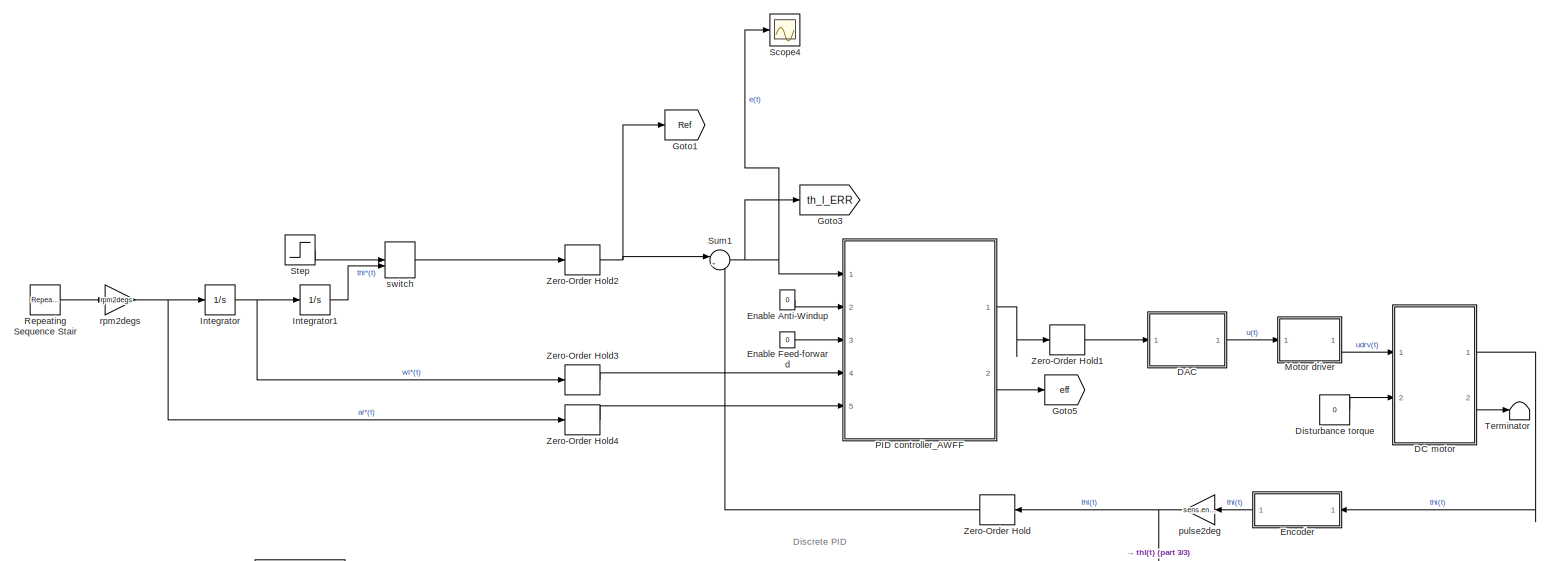
[diagram: root canvas - part 1/3, top center region]
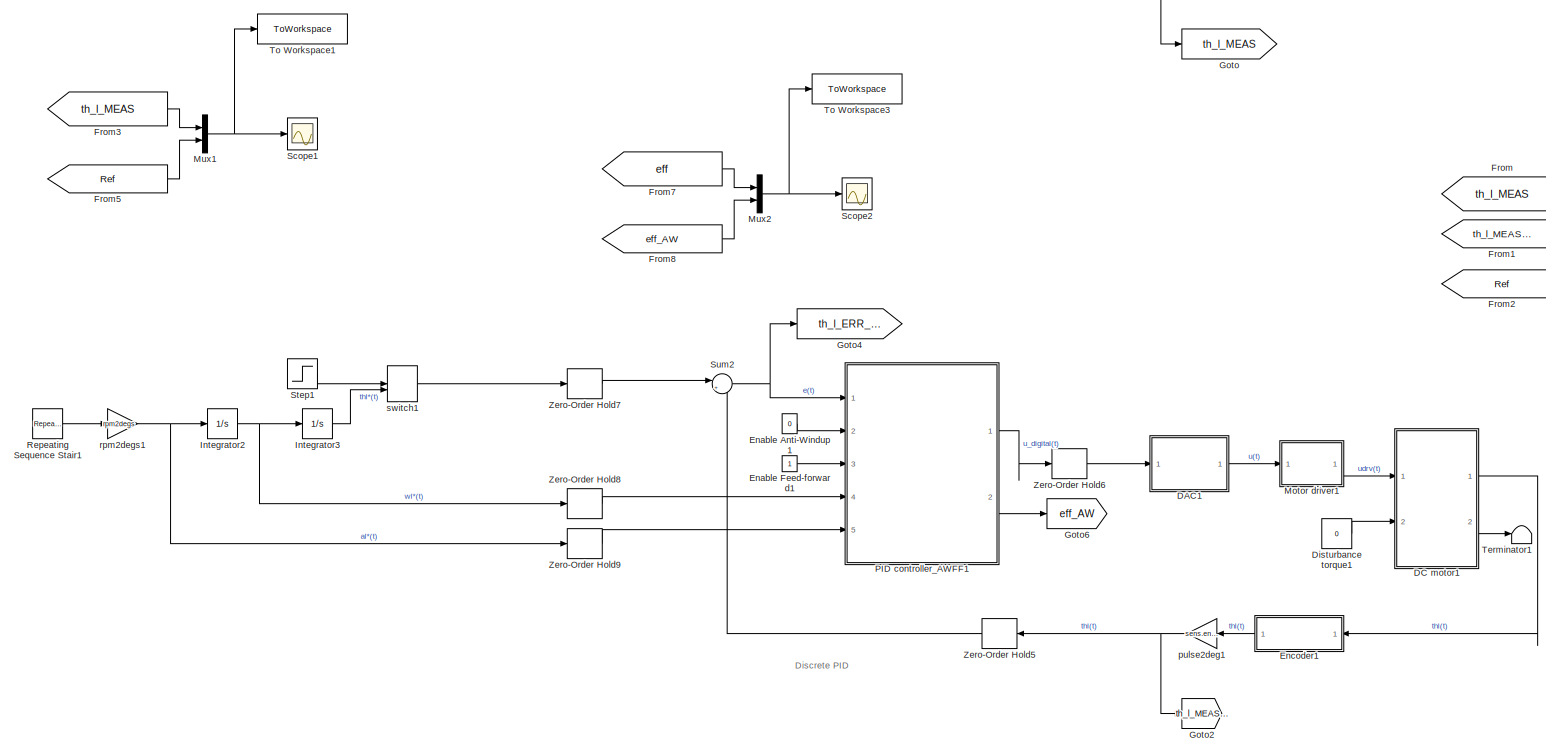
[diagram: root canvas - part 2/3, bottom center region]
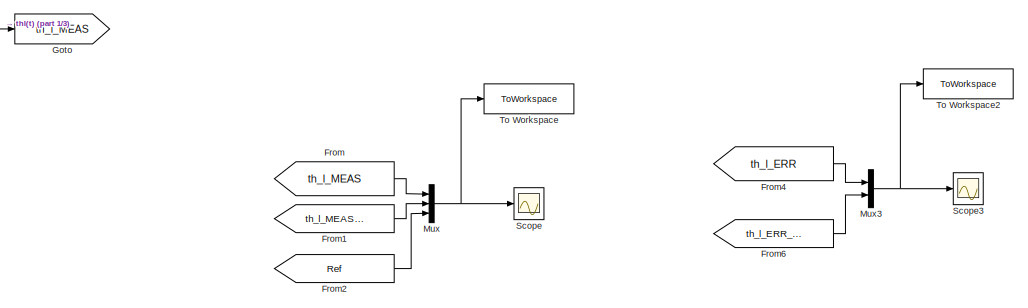
[diagram: root canvas - part 3/3, middle right region]
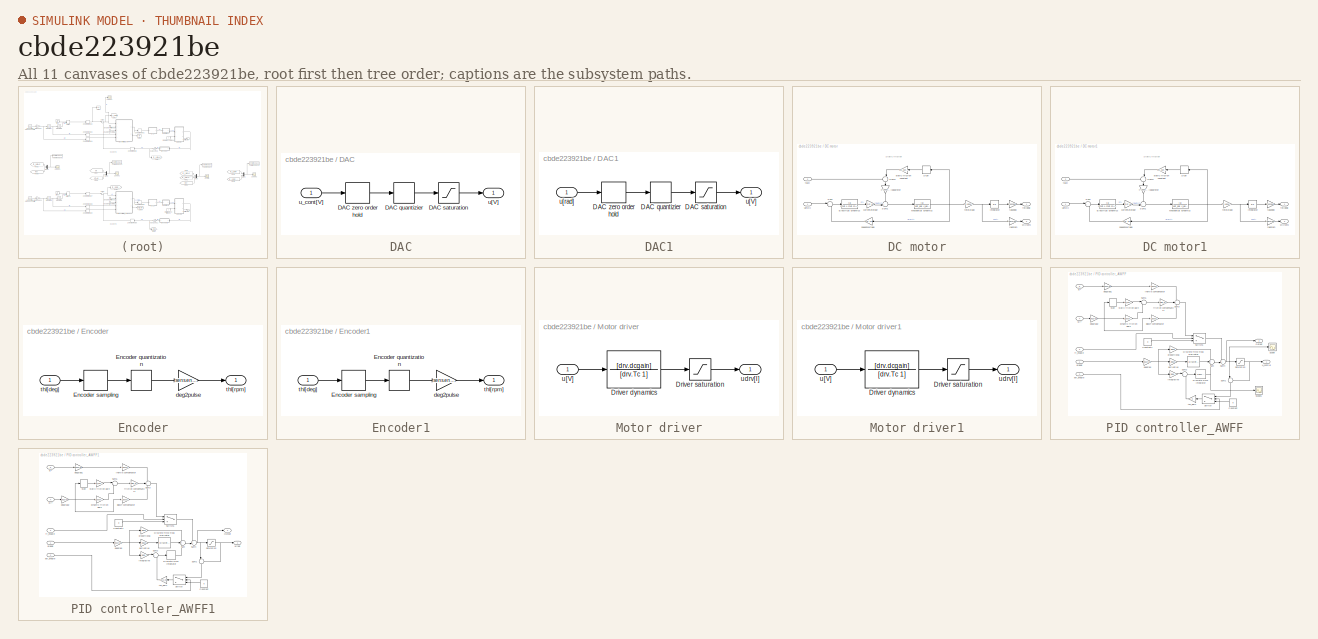
[diagram: thumbnail index - all 11 canvases of the model, root first then tree order]
MODEL slx_cbde223921be
KIND model
CONFIG AbsTol = auto
CONFIG EnableMultiTasking = off
CONFIG FixedStep = T_samp
CONFIG MaxStep = auto
CONFIG MinStep = auto
CONFIG RelTol = 1e-4
CONFIG SampleTimeConstraint = Unconstrained
CONFIG SolverName = ode45
CONFIG StartTime = 0.0
CONFIG StopTime = 1.5
BLOCK [SubSystem] DAC
  Ports = [1, 1]
  RequestExecContextInheritance = off
BLOCK [Quantizer] DAC/DAC quantizier
  QuantizationInterval = daq.dac.q
BLOCK [Saturate] DAC/DAC saturation
  LowerLimit = -10
  UpperLimit = 10
BLOCK [ZeroOrderHold] DAC/DAC zero order hold
  SampleTime = sens.enc.T_s
BLOCK [Outport] DAC/u[V]
BLOCK [Inport] DAC/u_cont[V]
BLOCK [SubSystem] DAC1
  Ports = [1, 1]
  RequestExecContextInheritance = off
BLOCK [Quantizer] DAC1/DAC quantizier
  QuantizationInterval = daq.dac.q
BLOCK [Saturate] DAC1/DAC saturation
  LowerLimit = -10
  UpperLimit = 10
BLOCK [ZeroOrderHold] DAC1/DAC zero order hold
  SampleTime = sens.enc.T_s
BLOCK [Outport] DAC1/u[V]
BLOCK [Inport] DAC1/u[rad]
BLOCK [SubSystem] DC motor
  Ports = [2, 2]
  RequestExecContextInheritance = off
BLOCK [TransferFcn] DC motor/Electrical dynamics
  Denominator = [mot.L mot.R+sens.curr.Rs]
BLOCK [Integrator] DC motor/Integrator
  Ports = [1, 1]
BLOCK [TransferFcn] DC motor/Mechanical dynamics
  Denominator = [est_par.J_eq est_par.B_eq]
BLOCK [Signum] DC motor/Sign
  ZeroCross = off
BLOCK [Sum] DC motor/Sum
  Inputs = |+-
  Ports = [2, 1]
BLOCK [Sum] DC motor/Sum1
  Inputs = -+|
  Ports = [2, 1]
BLOCK [Sum] DC motor/Sum2
  Inputs = ++|
  NameLocation = left
  Ports = [2, 1]
BLOCK [Gain] DC motor/current2torque
  Gain = mot.Kt
BLOCK [Gain] DC motor/load2rotor
  Gain = 1/(gbox.N)
  NameLocation = left
BLOCK [Gain] DC motor/rad2deg
  Gain = rad2deg
BLOCK [Gain] DC motor/rad2rpm
  Gain = rads2rpm
BLOCK [Gain] DC motor/rotor2load
  Gain = 1/(gbox.N)
BLOCK [Gain] DC motor/speed2voltage
  Gain = mot.Ke
BLOCK [Gain] DC motor/static friction constant
  Gain = est_par.tau_sf
BLOCK [Inport] DC motor/tau[]
  Port = 2
  Unit = V
BLOCK [Outport] DC motor/thl[deg]
  Unit = deg
BLOCK [Inport] DC motor/udrv[I]
  Unit = V
BLOCK [Outport] DC motor/wl[rpm]
  Port = 2
  Unit = rpm
BLOCK [SubSystem] DC motor1
  Ports = [2, 2]
  RequestExecContextInheritance = off
BLOCK [TransferFcn] DC motor1/Electrical dynamics
  Denominator = [mot.L mot.R+sens.curr.Rs]
BLOCK [Integrator] DC motor1/Integrator
  Ports = [1, 1]
BLOCK [TransferFcn] DC motor1/Mechanical dynamics
  Denominator = [est_par.J_eq est_par.B_eq]
BLOCK [Signum] DC motor1/Sign
  ZeroCross = off
BLOCK [Sum] DC motor1/Sum
  Inputs = |+-
  Ports = [2, 1]
BLOCK [Sum] DC motor1/Sum1
  Inputs = -+|
  Ports = [2, 1]
BLOCK [Sum] DC motor1/Sum2
  Inputs = ++|
  NameLocation = left
  Ports = [2, 1]
BLOCK [Gain] DC motor1/current2torque
  Gain = mot.Kt
BLOCK [Gain] DC motor1/load2rotor
  Gain = 1/(gbox.N)
  NameLocation = left
BLOCK [Gain] DC motor1/rad2deg
  Gain = rad2deg
BLOCK [Gain] DC motor1/rad2rpm
  Gain = rads2rpm
BLOCK [Gain] DC motor1/rotor2load
  Gain = 1/(gbox.N)
BLOCK [Gain] DC motor1/speed2voltage
  Gain = mot.Ke
BLOCK [Gain] DC motor1/static friction constant
  Gain = est_par.tau_sf
BLOCK [Inport] DC motor1/tau[]
  Port = 2
  Unit = V
BLOCK [Outport] DC motor1/thl[deg]
  Unit = deg
BLOCK [Inport] DC motor1/udrv[I]
  Unit = V
BLOCK [Outport] DC motor1/wl[rpm]
  Port = 2
  Unit = rpm
BLOCK [Constant] Disturbance torque
  Value = 0
BLOCK [Constant] Disturbance torque1
  Value = 0
BLOCK [Constant] Enable Anti-Windup
  Value = 0
BLOCK [Constant] Enable Anti-Windup1
  Value = 0
BLOCK [Constant] Enable Feed-forward
  Value = 0
BLOCK [Constant] Enable Feed-forward1
BLOCK [SubSystem] Encoder
  Ports = [1, 1]
  RequestExecContextInheritance = off
BLOCK [Quantizer] Encoder/Encoder quantization
  QuantizationInterval = sens.enc.q
BLOCK [ZeroOrderHold] Encoder/Encoder sampling
  SampleTime = sens.enc.T_s
BLOCK [Gain] Encoder/deg2pulse
  Gain = sens.enc.deg2pulse
BLOCK [Inport] Encoder/thl[deg]
BLOCK [Outport] Encoder/thl[rpm]
BLOCK [SubSystem] Encoder1
  Ports = [1, 1]
  RequestExecContextInheritance = off
BLOCK [Quantizer] Encoder1/Encoder quantization
  QuantizationInterval = sens.enc.q
BLOCK [ZeroOrderHold] Encoder1/Encoder sampling
  SampleTime = sens.enc.T_s
BLOCK [Gain] Encoder1/deg2pulse
  Gain = sens.enc.deg2pulse
BLOCK [Inport] Encoder1/thl[deg]
BLOCK [Outport] Encoder1/thl[rpm]
BLOCK [From] From
  GotoTag = th_l_MEAS
BLOCK [From] From1
  GotoTag = th_l_MEAS_AWFF
BLOCK [From] From2
  GotoTag = Ref
BLOCK [From] From3
  GotoTag = th_l_MEAS
BLOCK [From] From4
  GotoTag = th_l_ERR
BLOCK [From] From5
  GotoTag = Ref
BLOCK [From] From6
  GotoTag = th_l_ERR_AWFF
BLOCK [From] From7
  GotoTag = eff
BLOCK [From] From8
  GotoTag = eff_AW
BLOCK [Goto] Goto
  GotoTag = th_l_MEAS
BLOCK [Goto] Goto1
  GotoTag = Ref
BLOCK [Goto] Goto2
  GotoTag = th_l_MEAS_AWFF
BLOCK [Goto] Goto3
  GotoTag = th_l_ERR
BLOCK [Goto] Goto4
  GotoTag = th_l_ERR_AWFF
BLOCK [Goto] Goto5
  GotoTag = eff
BLOCK [Goto] Goto6
  GotoTag = eff_AW
BLOCK [Integrator] Integrator
  Ports = [1, 1]
BLOCK [Integrator] Integrator1
  Ports = [1, 1]
BLOCK [Integrator] Integrator2
  Ports = [1, 1]
BLOCK [Integrator] Integrator3
  Ports = [1, 1]
BLOCK [SubSystem] Motor driver
  Ports = [1, 1]
  RequestExecContextInheritance = off
BLOCK [TransferFcn] Motor driver/Driver dynamics
  Denominator = [drv.Tc 1]
  Numerator = [drv.dcgain]
BLOCK [Saturate] Motor driver/Driver saturation
  LowerLimit = -12
  UpperLimit = 12
BLOCK [Inport] Motor driver/u[V]
BLOCK [Outport] Motor driver/udrv[I]
BLOCK [SubSystem] Motor driver1
  Ports = [1, 1]
  RequestExecContextInheritance = off
BLOCK [TransferFcn] Motor driver1/Driver dynamics
  Denominator = [drv.Tc 1]
  Numerator = [drv.dcgain]
BLOCK [Saturate] Motor driver1/Driver saturation
  LowerLimit = -12
  UpperLimit = 12
BLOCK [Inport] Motor driver1/u[V]
BLOCK [Outport] Motor driver1/udrv[I]
BLOCK [Mux] Mux
  DisplayOption = bar
  Inputs = 3
  Ports = [3, 1]
BLOCK [Mux] Mux1
  DisplayOption = bar
  Inputs = 2
  Ports = [2, 1]
BLOCK [Mux] Mux2
  DisplayOption = bar
  Inputs = 2
  Ports = [2, 1]
BLOCK [Mux] Mux3
  DisplayOption = bar
  Inputs = 2
  Ports = [2, 1]
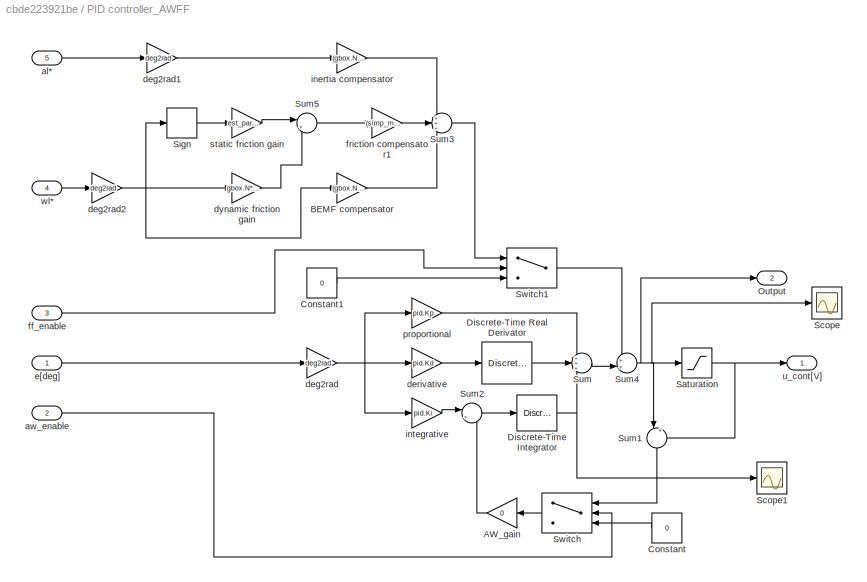
BLOCK [SubSystem] PID controller_AWFF
  Ports = [5, 2]
  RequestExecContextInheritance = off
BLOCK [Gain] PID controller_AWFF/AW_gain
  Gain = 0
  NameLocation = top
BLOCK [Gain] PID controller_AWFF/BEMF compensator
  Gain = (gbox.N*mot.Ke)/(drv.dcgain)
BLOCK [Constant] PID controller_AWFF/Constant
  NameLocation = top
  Value = 0
BLOCK [Constant] PID controller_AWFF/Constant1
  Value = 0
BLOCK [DiscreteIntegrator] PID controller_AWFF/Discrete-Time Integrator
  ICPrevOutput = DiscIntNeverNeededParam
  ICPrevScaledInput = DiscIntNeverNeededParam
  InitialConditionSetting = Auto
  IntegratorMethod = Integration: Trapezoidal
  Ports = [1, 1]
  SampleTime = T_samp
BLOCK [DiscreteTransferFcn] PID controller_AWFF/Discrete-Time Real Derivator
  Denominator = tust.der_den
  InputPortMap = u0
  Numerator = tust.der_num
  Ports = [1, 1]
  SampleTime = T_samp
BLOCK [Outport] PID controller_AWFF/Output
  Port = 2
BLOCK [Saturate] PID controller_AWFF/Saturation
  LowerLimit = daq.dac.vss
  UpperLimit = daq.dac.vdd
BLOCK [Scope] PID controller_AWFF/Scope
  Floating = off
  NumInputPorts = 1
  Ports = [1]
  ScopeSpecificationString = Simulink.scopes.TimeScopeBlockCfg('CurrentConfiguration', extmgr.ConfigurationSet(extmgr.Configuration('Core','General UI',true),extmgr.Configuration('Core','Source UI',true),extmgr.Configuration('Sources','WiredSimulink',true,'DataLoggingVariableName','ScopeData2'),extmgr.Configuration('Visuals','Time Domain',true,'SerializedDisplays',{struct('MinYLimReal','-113.24985','MaxYLimReal','118.13528','...<+1421ch>
BLOCK [Scope] PID controller_AWFF/Scope1
  Floating = off
  NumInputPorts = 1
  Ports = [1]
  ScopeSpecificationString = Simulink.scopes.TimeScopeBlockCfg('CurrentConfiguration', extmgr.ConfigurationSet(extmgr.Configuration('Core','General UI',true),extmgr.Configuration('Core','Source UI',true),extmgr.Configuration('Sources','WiredSimulink',true,'DataLoggingVariableName','ScopeData1'),extmgr.Configuration('Visuals','Time Domain',true,'SerializedDisplays',{struct('MinYLimReal','-2.17068','MaxYLimReal','4.995','YLabel...<+1400ch>
BLOCK [Signum] PID controller_AWFF/Sign
BLOCK [Sum] PID controller_AWFF/Sum
  Inputs = +++
  Ports = [3, 1]
BLOCK [Sum] PID controller_AWFF/Sum1
  Inputs = |+-
  NameLocation = left
  Ports = [2, 1]
BLOCK [Sum] PID controller_AWFF/Sum2
  Inputs = |+-
  Ports = [2, 1]
BLOCK [Sum] PID controller_AWFF/Sum3
  Inputs = +++
  Ports = [3, 1]
BLOCK [Sum] PID controller_AWFF/Sum4
  Inputs = ++|
  Ports = [2, 1]
BLOCK [Sum] PID controller_AWFF/Sum5
  Inputs = |++
  Ports = [2, 1]
BLOCK [Switch] PID controller_AWFF/Switch
  Criteria = u2 > Threshold
  InputSameDT = off
  NameLocation = top
  SaturateOnIntegerOverflow = off
BLOCK [Switch] PID controller_AWFF/Switch1
  Criteria = u2 > Threshold
  InputSameDT = off
  SaturateOnIntegerOverflow = off
BLOCK [Inport] PID controller_AWFF/al*
  Port = 5
  Unit = deg
BLOCK [Inport] PID controller_AWFF/aw_enable
  Port = 2
  Unit = deg
BLOCK [Gain] PID controller_AWFF/deg2rad
  Gain = deg2rad
BLOCK [Gain] PID controller_AWFF/deg2rad1
  Gain = deg2rad
BLOCK [Gain] PID controller_AWFF/deg2rad2
  Gain = deg2rad
BLOCK [Gain] PID controller_AWFF/derivative
  Gain = pid.Kd
BLOCK [Gain] PID controller_AWFF/dynamic friction gain
  Gain = gbox.N*gbox.N*est_par.B_eq
BLOCK [Inport] PID controller_AWFF/e[deg]
  Unit = deg
BLOCK [Inport] PID controller_AWFF/ff_enable
  Port = 3
  Unit = deg
BLOCK [Gain] PID controller_AWFF/friction compensator1
  Gain = (simp_model.Req)/(drv.dcgain*mot.Kt*gbox.N)
BLOCK [Gain] PID controller_AWFF/inertia compensator
  Gain = (gbox.N*simp_model.Req*est_par.J_eq)/(drv.dcgain*mot.Kt)
BLOCK [Gain] PID controller_AWFF/integrative
  Gain = pid.Ki
BLOCK [Gain] PID controller_AWFF/proportional
  Gain = pid.Kp
BLOCK [Gain] PID controller_AWFF/static friction gain
  Gain = est_par.tau_sf
BLOCK [Outport] PID controller_AWFF/u_cont[V]
BLOCK [Inport] PID controller_AWFF/wl*
  Port = 4
  Unit = deg
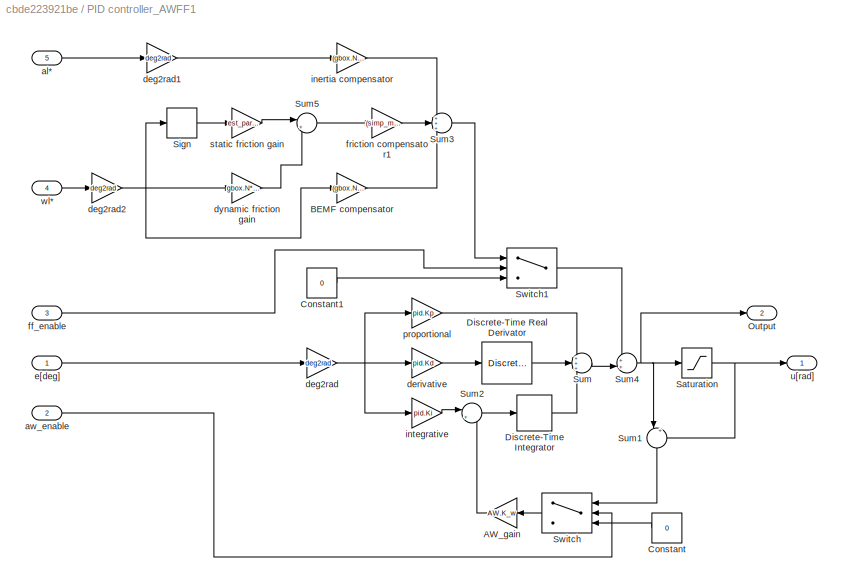
BLOCK [SubSystem] PID controller_AWFF1
  Ports = [5, 2]
  RequestExecContextInheritance = off
BLOCK [Gain] PID controller_AWFF1/AW_gain
  Gain = AW.K_w
  NameLocation = top
BLOCK [Gain] PID controller_AWFF1/BEMF compensator
  Gain = (gbox.N*mot.Ke)/(drv.dcgain)
BLOCK [Constant] PID controller_AWFF1/Constant
  NameLocation = top
  Value = 0
BLOCK [Constant] PID controller_AWFF1/Constant1
  Value = 0
BLOCK [DiscreteIntegrator] PID controller_AWFF1/Discrete-Time Integrator
  ICPrevOutput = DiscIntNeverNeededParam
  ICPrevScaledInput = DiscIntNeverNeededParam
  InitialConditionSetting = Auto
  IntegratorMethod = Integration: Backward Euler
  Ports = [1, 1]
  SampleTime = T_samp
BLOCK [DiscreteTransferFcn] PID controller_AWFF1/Discrete-Time Real Derivator
  Denominator = back.der_den
  InputPortMap = u0
  Numerator = back.der_num
  Ports = [1, 1]
  SampleTime = T_samp
BLOCK [Outport] PID controller_AWFF1/Output
  Port = 2
BLOCK [Saturate] PID controller_AWFF1/Saturation
  LowerLimit = daq.dac.vss
  UpperLimit = daq.dac.vdd
BLOCK [Signum] PID controller_AWFF1/Sign
BLOCK [Sum] PID controller_AWFF1/Sum
  Inputs = +++
  Ports = [3, 1]
BLOCK [Sum] PID controller_AWFF1/Sum1
  Inputs = |+-
  NameLocation = left
  Ports = [2, 1]
BLOCK [Sum] PID controller_AWFF1/Sum2
  Inputs = |+-
  Ports = [2, 1]
BLOCK [Sum] PID controller_AWFF1/Sum3
  Inputs = +++
  Ports = [3, 1]
BLOCK [Sum] PID controller_AWFF1/Sum4
  Inputs = ++|
  Ports = [2, 1]
BLOCK [Sum] PID controller_AWFF1/Sum5
  Inputs = |++
  Ports = [2, 1]
BLOCK [Switch] PID controller_AWFF1/Switch
  Criteria = u2 > Threshold
  InputSameDT = off
  NameLocation = top
  SaturateOnIntegerOverflow = off
BLOCK [Switch] PID controller_AWFF1/Switch1
  Criteria = u2 > Threshold
  InputSameDT = off
  SaturateOnIntegerOverflow = off
BLOCK [Inport] PID controller_AWFF1/al*
  Port = 5
  Unit = deg
BLOCK [Inport] PID controller_AWFF1/aw_enable
  Port = 2
  Unit = deg
BLOCK [Gain] PID controller_AWFF1/deg2rad
  Gain = deg2rad
BLOCK [Gain] PID controller_AWFF1/deg2rad1
  Gain = deg2rad
BLOCK [Gain] PID controller_AWFF1/deg2rad2
  Gain = deg2rad
BLOCK [Gain] PID controller_AWFF1/derivative
  Gain = pid.Kd
BLOCK [Gain] PID controller_AWFF1/dynamic friction gain
  Gain = gbox.N*gbox.N*est_par.B_eq
BLOCK [Inport] PID controller_AWFF1/e[deg]
  Unit = deg
BLOCK [Inport] PID controller_AWFF1/ff_enable
  Port = 3
  Unit = deg
BLOCK [Gain] PID controller_AWFF1/friction compensator1
  Gain = (simp_model.Req)/(drv.dcgain*mot.Kt*gbox.N)
BLOCK [Gain] PID controller_AWFF1/inertia compensator
  Gain = (gbox.N*simp_model.Req*est_par.J_eq)/(drv.dcgain*mot.Kt)
BLOCK [Gain] PID controller_AWFF1/integrative
  Gain = pid.Ki
BLOCK [Gain] PID controller_AWFF1/proportional
  Gain = pid.Kp
BLOCK [Gain] PID controller_AWFF1/static friction gain
  Gain = est_par.tau_sf
BLOCK [Outport] PID controller_AWFF1/u[rad]
BLOCK [Inport] PID controller_AWFF1/wl*
  Port = 4
  Unit = deg
BLOCK [Reference] Repeating Sequence Stair  REF=simulink/Sources/Repeating
Sequence
Stair
  Ports = [0, 1]
  SourceBlock = simulink/Sources/Repeating\nSequence\nStair
  SourceProductBaseCode = SL
  SourceType = Repeating Sequence Stair
BLOCK [Reference] Repeating Sequence Stair1  REF=simulink/Sources/Repeating
Sequence
Stair
  Ports = [0, 1]
  SourceBlock = simulink/Sources/Repeating\nSequence\nStair
  SourceProductBaseCode = SL
  SourceType = Repeating Sequence Stair
BLOCK [Scope] Scope
  Floating = off
  NumInputPorts = 1
  Ports = [1]
  ScopeSpecificationString = Simulink.scopes.TimeScopeBlockCfg('CurrentConfiguration', extmgr.ConfigurationSet(extmgr.Configuration('Core','General UI',true),extmgr.Configuration('Core','Source UI',true),extmgr.Configuration('Sources','WiredSimulink',true),extmgr.Configuration('Visuals','Time Domain',true,'SerializedDisplays',{struct('MinYLimReal','-349.14551','MaxYLimReal','3049.14551','YLabelReal','','MinYLimMag',' 0.00000'...<+1487ch>
BLOCK [Scope] Scope1
  Floating = off
  NumInputPorts = 1
  Ports = [1]
  ScopeSpecificationString = Simulink.scopes.TimeScopeBlockCfg('CurrentConfiguration', extmgr.ConfigurationSet(extmgr.Configuration('Core','General UI',true),extmgr.Configuration('Core','Source UI',true),extmgr.Configuration('Sources','WiredSimulink',true,'DataLoggingVariableName','ScopeData1'),extmgr.Configuration('Visuals','Time Domain',true,'SerializedDisplays',{struct('MinYLimReal','-13.91968','MaxYLimReal','125.2771','YL...<+1796ch>
BLOCK [Scope] Scope2
  Floating = off
  NumInputPorts = 1
  Ports = [1]
  ScopeSpecificationString = Simulink.scopes.TimeScopeBlockCfg('CurrentConfiguration', extmgr.ConfigurationSet(extmgr.Configuration('Core','General UI',true),extmgr.Configuration('Core','Source UI',true),extmgr.Configuration('Sources','WiredSimulink',true,'DataLoggingVariableName','ScopeData1','DataLogging',true),extmgr.Configuration('Visuals','Time Domain',true,'SerializedDisplays',{struct('MinYLimReal','-73.40959','MaxYLimR...<+1604ch>
BLOCK [Scope] Scope3
  Floating = off
  NumInputPorts = 1
  Ports = [1]
  ScopeSpecificationString = Simulink.scopes.TimeScopeBlockCfg('CurrentConfiguration', extmgr.ConfigurationSet(extmgr.Configuration('Core','General UI',true),extmgr.Configuration('Core','Source UI',true),extmgr.Configuration('Sources','WiredSimulink',true,'DataLoggingVariableName','ScopeData2'),extmgr.Configuration('Visuals','Time Domain',true,'SerializedDisplays',{struct('MinYLimReal','-19.5126','MaxYLimReal','19.5126','YLab...<+1487ch>
BLOCK [Scope] Scope4
  Floating = off
  NumInputPorts = 1
  Ports = [1]
  ScopeSpecificationString = Simulink.scopes.TimeScopeBlockCfg('CurrentConfiguration', extmgr.ConfigurationSet(extmgr.Configuration('Core','General UI',true),extmgr.Configuration('Core','Source UI',true),extmgr.Configuration('Sources','WiredSimulink',true,'DataLoggingVariableName','ScopeData2'),extmgr.Configuration('Visuals','Time Domain',true,'SerializedDisplays',{struct('MinYLimReal','-64.40063','MaxYLimReal','62.71118','YL...<+1369ch>
BLOCK [Step] Step
  After = 50
  SampleTime = 0
  Time = 0
BLOCK [Step] Step1
  After = 360
  SampleTime = 0
  Time = 0
BLOCK [Sum] Sum1
  Inputs = |+-
  Ports = [2, 1]
BLOCK [Sum] Sum2
  Inputs = |+-
  Ports = [2, 1]
BLOCK [Terminator] Terminator
BLOCK [Terminator] Terminator1
BLOCK [ToWorkspace] To Workspace
  FixptAsFi = on
  MaxDataPoints = inf
  Ports = [1]
  SampleTime = -1
  SaveFormat = Structure With Time
  VariableName = simres
BLOCK [ToWorkspace] To Workspace1
  FixptAsFi = on
  MaxDataPoints = inf
  Ports = [1]
  SampleTime = -1
  SaveFormat = Structure With Time
  VariableName = simres1
BLOCK [ToWorkspace] To Workspace2
  FixptAsFi = on
  MaxDataPoints = inf
  Ports = [1]
  SampleTime = -1
  SaveFormat = Structure With Time
  VariableName = simerr
BLOCK [ToWorkspace] To Workspace3
  FixptAsFi = on
  MaxDataPoints = inf
  Ports = [1]
  SampleTime = -1
  SaveFormat = Structure With Time
  VariableName = simres2
BLOCK [ZeroOrderHold] Zero-Order Hold
  NameLocation = top
  SampleTime = T_samp
BLOCK [ZeroOrderHold] Zero-Order Hold1
  SampleTime = T_samp
BLOCK [ZeroOrderHold] Zero-Order Hold2
  SampleTime = T_samp
BLOCK [ZeroOrderHold] Zero-Order Hold3
  SampleTime = T_samp
BLOCK [ZeroOrderHold] Zero-Order Hold4
  SampleTime = T_samp
BLOCK [ZeroOrderHold] Zero-Order Hold5
  NameLocation = top
  SampleTime = T_samp
BLOCK [ZeroOrderHold] Zero-Order Hold6
  SampleTime = T_samp
BLOCK [ZeroOrderHold] Zero-Order Hold7
  SampleTime = T_samp
BLOCK [ZeroOrderHold] Zero-Order Hold8
  SampleTime = T_samp
BLOCK [ZeroOrderHold] Zero-Order Hold9
  SampleTime = T_samp
BLOCK [Gain] pulse2deg
  Gain = sens.enc.pulse2deg
BLOCK [Gain] pulse2deg1
  Gain = sens.enc.pulse2deg
BLOCK [Gain] rpm2degs
  Gain = rpm2degs
BLOCK [Gain] rpm2degs1
  Gain = rpm2degs
BLOCK [ManualSwitch] switch
BLOCK [ManualSwitch] switch1
  CurrentSetting = 0
ANNOTATION (root): Discrete PID
ANNOTATION DC motor: Static friction
ANNOTATION DC motor1: Static friction
LINE DAC/DAC quantizier:1 -> DAC/DAC saturation:1
LINE DAC/DAC saturation:1 -> DAC/u[V]:1
LINE DAC/DAC zero order hold:1 -> DAC/DAC quantizier:1
LINE DAC/u_cont[V]:1 -> DAC/DAC zero order hold:1
LINE DAC1/DAC quantizier:1 -> DAC1/DAC saturation:1
LINE DAC1/DAC saturation:1 -> DAC1/u[V]:1
LINE DAC1/DAC zero order hold:1 -> DAC1/DAC quantizier:1
LINE DAC1/u[rad]:1 -> DAC1/DAC zero order hold:1
LINE DAC1:1 -> Motor driver1:1
LINE DAC:1 -> Motor driver:1
LINE DC motor/Electrical dynamics:1 -> DC motor/current2torque:1
LINE DC motor/Integrator:1 -> DC motor/rad2deg:1
NET DC motor/Mechanical dynamics:1 -> DC motor/Sign:1, DC motor/rotor2load:1, DC motor/speed2voltage:1
LINE DC motor/Sign:1 -> DC motor/static friction constant:1
LINE DC motor/Sum1:1 -> DC motor/Mechanical dynamics:1
LINE DC motor/Sum2:1 -> DC motor/load2rotor:1
LINE DC motor/Sum:1 -> DC motor/Electrical dynamics:1
LINE DC motor/current2torque:1 -> DC motor/Sum1:2
LINE DC motor/load2rotor:1 -> DC motor/Sum1:1
LINE DC motor/rad2deg:1 -> DC motor/thl[deg]:1
LINE DC motor/rad2rpm:1 -> DC motor/wl[rpm]:1
NET DC motor/rotor2load:1 -> DC motor/Integrator:1, DC motor/rad2rpm:1
LINE DC motor/speed2voltage:1 -> DC motor/Sum:2
LINE DC motor/static friction constant:1 -> DC motor/Sum2:2
LINE DC motor/tau[]:1 -> DC motor/Sum2:1
LINE DC motor/udrv[I]:1 -> DC motor/Sum:1
LINE DC motor1/Electrical dynamics:1 -> DC motor1/current2torque:1
LINE DC motor1/Integrator:1 -> DC motor1/rad2deg:1
NET DC motor1/Mechanical dynamics:1 -> DC motor1/Sign:1, DC motor1/rotor2load:1, DC motor1/speed2voltage:1
LINE DC motor1/Sign:1 -> DC motor1/static friction constant:1
LINE DC motor1/Sum1:1 -> DC motor1/Mechanical dynamics:1
LINE DC motor1/Sum2:1 -> DC motor1/load2rotor:1
LINE DC motor1/Sum:1 -> DC motor1/Electrical dynamics:1
LINE DC motor1/current2torque:1 -> DC motor1/Sum1:2
LINE DC motor1/load2rotor:1 -> DC motor1/Sum1:1
LINE DC motor1/rad2deg:1 -> DC motor1/thl[deg]:1
LINE DC motor1/rad2rpm:1 -> DC motor1/wl[rpm]:1
NET DC motor1/rotor2load:1 -> DC motor1/Integrator:1, DC motor1/rad2rpm:1
LINE DC motor1/speed2voltage:1 -> DC motor1/Sum:2
LINE DC motor1/static friction constant:1 -> DC motor1/Sum2:2
LINE DC motor1/tau[]:1 -> DC motor1/Sum2:1
LINE DC motor1/udrv[I]:1 -> DC motor1/Sum:1
LINE DC motor1:1 -> Encoder1:1
LINE DC motor1:2 -> Terminator1:1
LINE DC motor:1 -> Encoder:1
LINE DC motor:2 -> Terminator:1
LINE Disturbance torque1:1 -> DC motor1:2
LINE Disturbance torque:1 -> DC motor:2
LINE Enable Anti-Windup1:1 -> PID controller_AWFF1:2
LINE Enable Anti-Windup:1 -> PID controller_AWFF:2
LINE Enable Feed-forward1:1 -> PID controller_AWFF1:3
LINE Enable Feed-forward:1 -> PID controller_AWFF:3
LINE Encoder/Encoder quantization:1 -> Encoder/deg2pulse:1
LINE Encoder/Encoder sampling:1 -> Encoder/Encoder quantization:1
LINE Encoder/deg2pulse:1 -> Encoder/thl[rpm]:1
LINE Encoder/thl[deg]:1 -> Encoder/Encoder sampling:1
LINE Encoder1/Encoder quantization:1 -> Encoder1/deg2pulse:1
LINE Encoder1/Encoder sampling:1 -> Encoder1/Encoder quantization:1
LINE Encoder1/deg2pulse:1 -> Encoder1/thl[rpm]:1
LINE Encoder1/thl[deg]:1 -> Encoder1/Encoder sampling:1
LINE Encoder1:1 -> pulse2deg1:1
LINE Encoder:1 -> pulse2deg:1
LINE From1:1 -> Mux:2
LINE From2:1 -> Mux:3
LINE From3:1 -> Mux1:1
LINE From4:1 -> Mux3:1
LINE From5:1 -> Mux1:2
LINE From6:1 -> Mux3:2
LINE From7:1 -> Mux2:1
LINE From8:1 -> Mux2:2
LINE From:1 -> Mux:1
LINE Integrator1:1 -> switch:2
NET Integrator2:1 -> Integrator3:1, Zero-Order Hold8:1
LINE Integrator3:1 -> switch1:2
NET Integrator:1 -> Integrator1:1, Zero-Order Hold3:1
LINE Motor driver/Driver dynamics:1 -> Motor driver/Driver saturation:1
LINE Motor driver/Driver saturation:1 -> Motor driver/udrv[I]:1
LINE Motor driver/u[V]:1 -> Motor driver/Driver dynamics:1
LINE Motor driver1/Driver dynamics:1 -> Motor driver1/Driver saturation:1
LINE Motor driver1/Driver saturation:1 -> Motor driver1/udrv[I]:1
LINE Motor driver1/u[V]:1 -> Motor driver1/Driver dynamics:1
LINE Motor driver1:1 -> DC motor1:1
LINE Motor driver:1 -> DC motor:1
NET Mux1:1 -> Scope1:1, To Workspace1:1
NET Mux2:1 -> Scope2:1, To Workspace3:1
NET Mux3:1 -> Scope3:1, To Workspace2:1
NET Mux:1 -> Scope:1, To Workspace:1
LINE PID controller_AWFF/AW_gain:1 -> PID controller_AWFF/Sum2:2
LINE PID controller_AWFF/BEMF compensator:1 -> PID controller_AWFF/Sum3:3
LINE PID controller_AWFF/Constant1:1 -> PID controller_AWFF/Switch1:3
LINE PID controller_AWFF/Constant:1 -> PID controller_AWFF/Switch:3
NET PID controller_AWFF/Discrete-Time Integrator:1 -> PID controller_AWFF/Scope1:1, PID controller_AWFF/Sum:3
LINE PID controller_AWFF/Discrete-Time Real Derivator:1 -> PID controller_AWFF/Sum:2
NET PID controller_AWFF/Saturation:1 -> PID controller_AWFF/Sum1:2, PID controller_AWFF/u_cont[V]:1
LINE PID controller_AWFF/Sign:1 -> PID controller_AWFF/static friction gain:1
LINE PID controller_AWFF/Sum1:1 -> PID controller_AWFF/Switch:1
LINE PID controller_AWFF/Sum2:1 -> PID controller_AWFF/Discrete-Time Integrator:1
LINE PID controller_AWFF/Sum3:1 -> PID controller_AWFF/Switch1:1
NET PID controller_AWFF/Sum4:1 -> PID controller_AWFF/Output:1, PID controller_AWFF/Saturation:1, PID controller_AWFF/Scope:1, PID controller_AWFF/Sum1:1
LINE PID controller_AWFF/Sum5:1 -> PID controller_AWFF/friction compensator1:1
LINE PID controller_AWFF/Sum:1 -> PID controller_AWFF/Sum4:2
LINE PID controller_AWFF/Switch1:1 -> PID controller_AWFF/Sum4:1
LINE PID controller_AWFF/Switch:1 -> PID controller_AWFF/AW_gain:1
LINE PID controller_AWFF/al*:1 -> PID controller_AWFF/deg2rad1:1
LINE PID controller_AWFF/aw_enable:1 -> PID controller_AWFF/Switch:2
LINE PID controller_AWFF/deg2rad1:1 -> PID controller_AWFF/inertia compensator:1
NET PID controller_AWFF/deg2rad2:1 -> PID controller_AWFF/BEMF compensator:1, PID controller_AWFF/Sign:1, PID controller_AWFF/dynamic friction gain:1
NET PID controller_AWFF/deg2rad:1 -> PID controller_AWFF/derivative:1, PID controller_AWFF/integrative:1, PID controller_AWFF/proportional:1
LINE PID controller_AWFF/derivative:1 -> PID controller_AWFF/Discrete-Time Real Derivator:1
LINE PID controller_AWFF/dynamic friction gain:1 -> PID controller_AWFF/Sum5:2
LINE PID controller_AWFF/e[deg]:1 -> PID controller_AWFF/deg2rad:1
LINE PID controller_AWFF/ff_enable:1 -> PID controller_AWFF/Switch1:2
LINE PID controller_AWFF/friction compensator1:1 -> PID controller_AWFF/Sum3:2
LINE PID controller_AWFF/inertia compensator:1 -> PID controller_AWFF/Sum3:1
LINE PID controller_AWFF/integrative:1 -> PID controller_AWFF/Sum2:1
LINE PID controller_AWFF/proportional:1 -> PID controller_AWFF/Sum:1
LINE PID controller_AWFF/static friction gain:1 -> PID controller_AWFF/Sum5:1
LINE PID controller_AWFF/wl*:1 -> PID controller_AWFF/deg2rad2:1
LINE PID controller_AWFF1/AW_gain:1 -> PID controller_AWFF1/Sum2:2
LINE PID controller_AWFF1/BEMF compensator:1 -> PID controller_AWFF1/Sum3:3
LINE PID controller_AWFF1/Constant1:1 -> PID controller_AWFF1/Switch1:3
LINE PID controller_AWFF1/Constant:1 -> PID controller_AWFF1/Switch:3
LINE PID controller_AWFF1/Discrete-Time Integrator:1 -> PID controller_AWFF1/Sum:3
LINE PID controller_AWFF1/Discrete-Time Real Derivator:1 -> PID controller_AWFF1/Sum:2
NET PID controller_AWFF1/Saturation:1 -> PID controller_AWFF1/Sum1:2, PID controller_AWFF1/u[rad]:1
LINE PID controller_AWFF1/Sign:1 -> PID controller_AWFF1/static friction gain:1
LINE PID controller_AWFF1/Sum1:1 -> PID controller_AWFF1/Switch:1
LINE PID controller_AWFF1/Sum2:1 -> PID controller_AWFF1/Discrete-Time Integrator:1
LINE PID controller_AWFF1/Sum3:1 -> PID controller_AWFF1/Switch1:1
NET PID controller_AWFF1/Sum4:1 -> PID controller_AWFF1/Output:1, PID controller_AWFF1/Saturation:1, PID controller_AWFF1/Sum1:1
LINE PID controller_AWFF1/Sum5:1 -> PID controller_AWFF1/friction compensator1:1
LINE PID controller_AWFF1/Sum:1 -> PID controller_AWFF1/Sum4:2
LINE PID controller_AWFF1/Switch1:1 -> PID controller_AWFF1/Sum4:1
LINE PID controller_AWFF1/Switch:1 -> PID controller_AWFF1/AW_gain:1
LINE PID controller_AWFF1/al*:1 -> PID controller_AWFF1/deg2rad1:1
LINE PID controller_AWFF1/aw_enable:1 -> PID controller_AWFF1/Switch:2
LINE PID controller_AWFF1/deg2rad1:1 -> PID controller_AWFF1/inertia compensator:1
NET PID controller_AWFF1/deg2rad2:1 -> PID controller_AWFF1/BEMF compensator:1, PID controller_AWFF1/Sign:1, PID controller_AWFF1/dynamic friction gain:1
NET PID controller_AWFF1/deg2rad:1 -> PID controller_AWFF1/derivative:1, PID controller_AWFF1/integrative:1, PID controller_AWFF1/proportional:1
LINE PID controller_AWFF1/derivative:1 -> PID controller_AWFF1/Discrete-Time Real Derivator:1
LINE PID controller_AWFF1/dynamic friction gain:1 -> PID controller_AWFF1/Sum5:2
LINE PID controller_AWFF1/e[deg]:1 -> PID controller_AWFF1/deg2rad:1
LINE PID controller_AWFF1/ff_enable:1 -> PID controller_AWFF1/Switch1:2
LINE PID controller_AWFF1/friction compensator1:1 -> PID controller_AWFF1/Sum3:2
LINE PID controller_AWFF1/inertia compensator:1 -> PID controller_AWFF1/Sum3:1
LINE PID controller_AWFF1/integrative:1 -> PID controller_AWFF1/Sum2:1
LINE PID controller_AWFF1/proportional:1 -> PID controller_AWFF1/Sum:1
LINE PID controller_AWFF1/static friction gain:1 -> PID controller_AWFF1/Sum5:1
LINE PID controller_AWFF1/wl*:1 -> PID controller_AWFF1/deg2rad2:1
LINE PID controller_AWFF1:1 -> Zero-Order Hold6:1
LINE PID controller_AWFF1:2 -> Goto6:1
LINE PID controller_AWFF:1 -> Zero-Order Hold1:1
LINE PID controller_AWFF:2 -> Goto5:1
LINE Repeating Sequence Stair1:1 -> rpm2degs1:1
LINE Repeating Sequence Stair:1 -> rpm2degs:1
LINE Step1:1 -> switch1:1
LINE Step:1 -> switch:1
NET Sum1:1 -> Goto3:1, PID controller_AWFF:1, Scope4:1
NET Sum2:1 -> Goto4:1, PID controller_AWFF1:1
LINE Zero-Order Hold1:1 -> DAC:1
NET Zero-Order Hold2:1 -> Goto1:1, Sum1:1
LINE Zero-Order Hold3:1 -> PID controller_AWFF:4
LINE Zero-Order Hold4:1 -> PID controller_AWFF:5
LINE Zero-Order Hold5:1 -> Sum2:2
LINE Zero-Order Hold6:1 -> DAC1:1
LINE Zero-Order Hold7:1 -> Sum2:1
LINE Zero-Order Hold8:1 -> PID controller_AWFF1:4
LINE Zero-Order Hold9:1 -> PID controller_AWFF1:5
LINE Zero-Order Hold:1 -> Sum1:2
NET pulse2deg1:1 -> Goto2:1, Zero-Order Hold5:1
NET pulse2deg:1 -> Goto:1, Zero-Order Hold:1
NET rpm2degs1:1 -> Integrator2:1, Zero-Order Hold9:1
NET rpm2degs:1 -> Integrator:1, Zero-Order Hold4:1
LINE switch1:1 -> Zero-Order Hold7:1
LINE switch:1 -> Zero-Order Hold2:1
note: NET lines group one-source signal fan-out (src -> all destinations, sorted); 1:1 wires keep LINE
